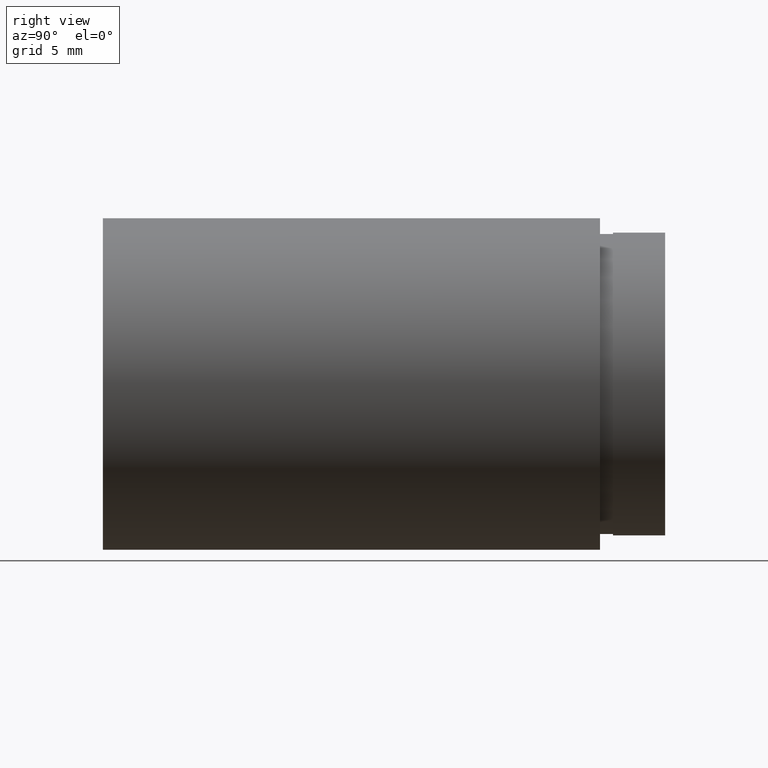
[diagram: clean part render]
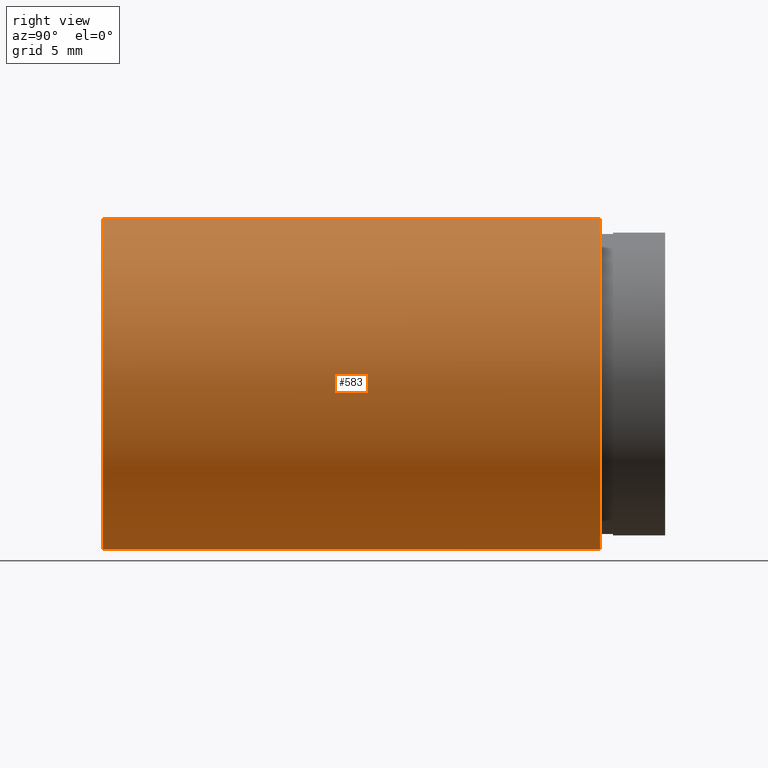
[diagram: same view with one face highlighted and labeled with its STEP entity id]
A machine part, right view. The second image highlights one B-rep face of the part: STEP entity #583.
In plain terms, the highlighted cylindrical surface (partial cylindrical patch) has radius 12.7 mm, axis along (-0, 1, -0).
Its self-contained STEP definition (entity closure, byte-faithful):
#10 = EDGE_CURVE ( 'NONE', #498, #480, #343, .T. ) ;
#16 = ORIENTED_EDGE ( 'NONE', *, *, #10, .T. ) ;
#23 = DIRECTION ( 'NONE',  ( 0.0000000000000000000, 0.0000000000000000000, 1.000000000000000000 ) ) ;
#45 = EDGE_CURVE ( 'NONE', #433, #480, #272, .T. ) ;
#50 = CARTESIAN_POINT ( 'NONE',  ( 0.0000000000000000000, -2.775557561562891400E-014, 0.0000000000000000000 ) ) ;
#52 = FACE_OUTER_BOUND ( 'NONE', #215, .T. ) ;
#69 = DIRECTION ( 'NONE',  ( -0.0000000000000000000, 1.000000000000000000, -0.0000000000000000000 ) ) ;
#77 = CARTESIAN_POINT ( 'NONE',  ( 1.555301434917141000E-015, 161.3761669434274500, -12.70000000000002100 ) ) ;
#99 = ORIENTED_EDGE ( 'NONE', *, *, #102, .F. ) ;
#102 = EDGE_CURVE ( 'NONE', #552, #433, #206, .T. ) ;
#103 = DIRECTION ( 'NONE',  ( -0.0000000000000000000, 1.000000000000000000, -0.0000000000000000000 ) ) ;
#121 = AXIS2_PLACEMENT_3D ( 'NONE', #369, #270, #23 ) ;
#141 = AXIS2_PLACEMENT_3D ( 'NONE', #173, #69, #276 ) ;
#151 = DIRECTION ( 'NONE',  ( 0.0000000000000000000, 0.0000000000000000000, 1.000000000000000000 ) ) ;
#154 = VECTOR ( 'NONE', #554, 1000.000000000000000 ) ;
#159 = CIRCLE ( 'NONE', #232, 12.70000000000002100 ) ;
#173 = CARTESIAN_POINT ( 'NONE',  ( 0.0000000000000000000, 38.09999999999999400, 0.0000000000000000000 ) ) ;
#206 = LINE ( 'NONE', #269, #154 ) ;
#215 = EDGE_LOOP ( 'NONE', ( #527, #16, #409, #99 ) ) ;
#232 = AXIS2_PLACEMENT_3D ( 'NONE', #50, #103, #151 ) ;
#236 = CYLINDRICAL_SURFACE ( 'NONE', #121, 12.70000000000002100 ) ;
#239 = VECTOR ( 'NONE', #461, 1000.000000000000000 ) ;
#263 = CARTESIAN_POINT ( 'NONE',  ( 0.0000000000000000000, 38.09999999999999400, 12.70000000000001900 ) ) ;
#269 = CARTESIAN_POINT ( 'NONE',  ( 0.0000000000000000000, 161.3761669434274500, 12.70000000000002100 ) ) ;
#270 = DIRECTION ( 'NONE',  ( -0.0000000000000000000, 1.000000000000000000, -0.0000000000000000000 ) ) ;
#272 = CIRCLE ( 'NONE', #141, 12.70000000000001900 ) ;
#276 = DIRECTION ( 'NONE',  ( 0.0000000000000000000, 0.0000000000000000000, 1.000000000000000000 ) ) ;
#339 = EDGE_CURVE ( 'NONE', #552, #498, #159, .T. ) ;
#343 = LINE ( 'NONE', #77, #239 ) ;
#369 = CARTESIAN_POINT ( 'NONE',  ( 0.0000000000000000000, 161.3761669434274500, 0.0000000000000000000 ) ) ;
#408 = CARTESIAN_POINT ( 'NONE',  ( 0.0000000000000000000, -2.775557561562891400E-014, 12.70000000000002100 ) ) ;
#409 = ORIENTED_EDGE ( 'NONE', *, *, #45, .F. ) ;
#433 = VERTEX_POINT ( 'NONE', #263 ) ;
#445 = CARTESIAN_POINT ( 'NONE',  ( 1.555301434917140800E-015, 38.09999999999999400, -12.70000000000001900 ) ) ;
#450 = CARTESIAN_POINT ( 'NONE',  ( 1.555301434917141000E-015, -2.775557561562891400E-014, -12.70000000000002100 ) ) ;
#461 = DIRECTION ( 'NONE',  ( -0.0000000000000000000, 1.000000000000000000, -0.0000000000000000000 ) ) ;
#480 = VERTEX_POINT ( 'NONE', #445 ) ;
#498 = VERTEX_POINT ( 'NONE', #450 ) ;
#527 = ORIENTED_EDGE ( 'NONE', *, *, #339, .T. ) ;
#552 = VERTEX_POINT ( 'NONE', #408 ) ;
#554 = DIRECTION ( 'NONE',  ( -0.0000000000000000000, 1.000000000000000000, -0.0000000000000000000 ) ) ;
#583 = ADVANCED_FACE ( 'NONE', ( #52 ), #236, .T. ) ;